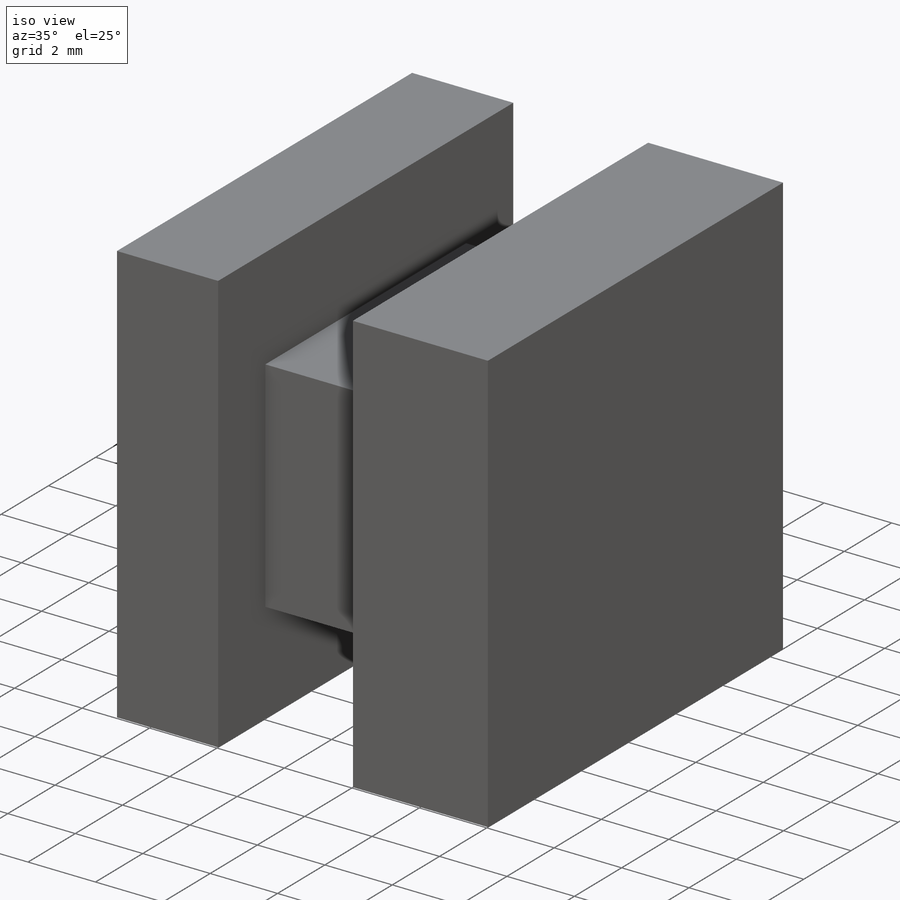
[diagram: iso view]
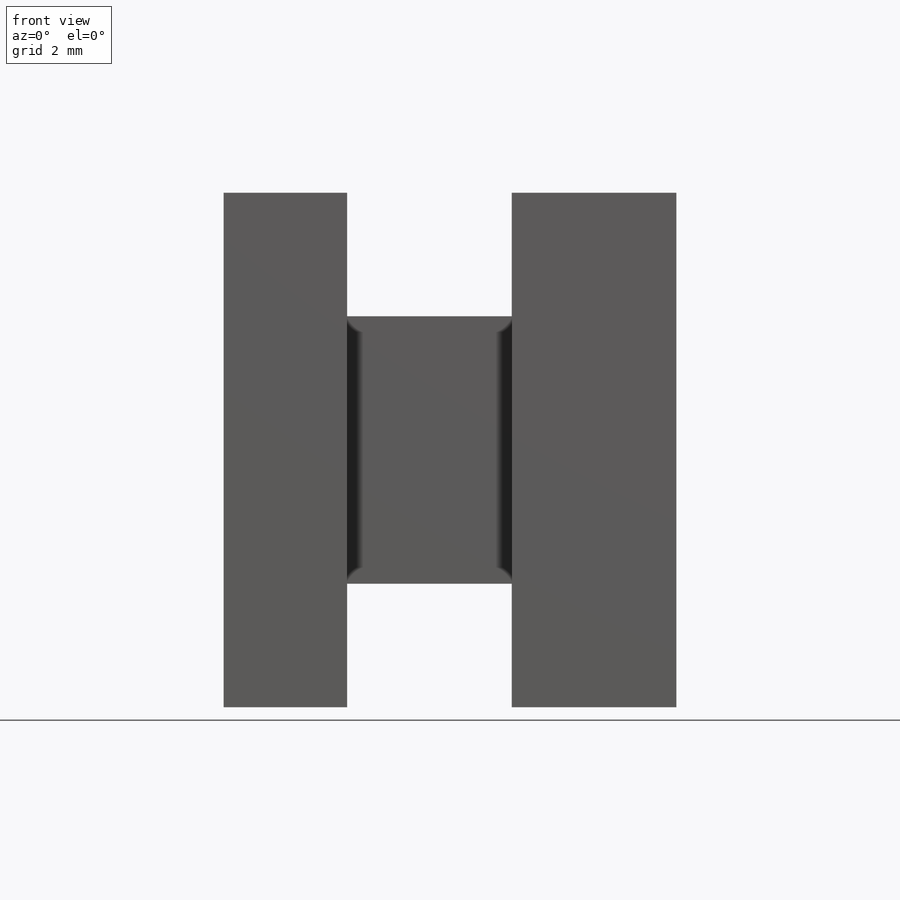
[diagram: front view]
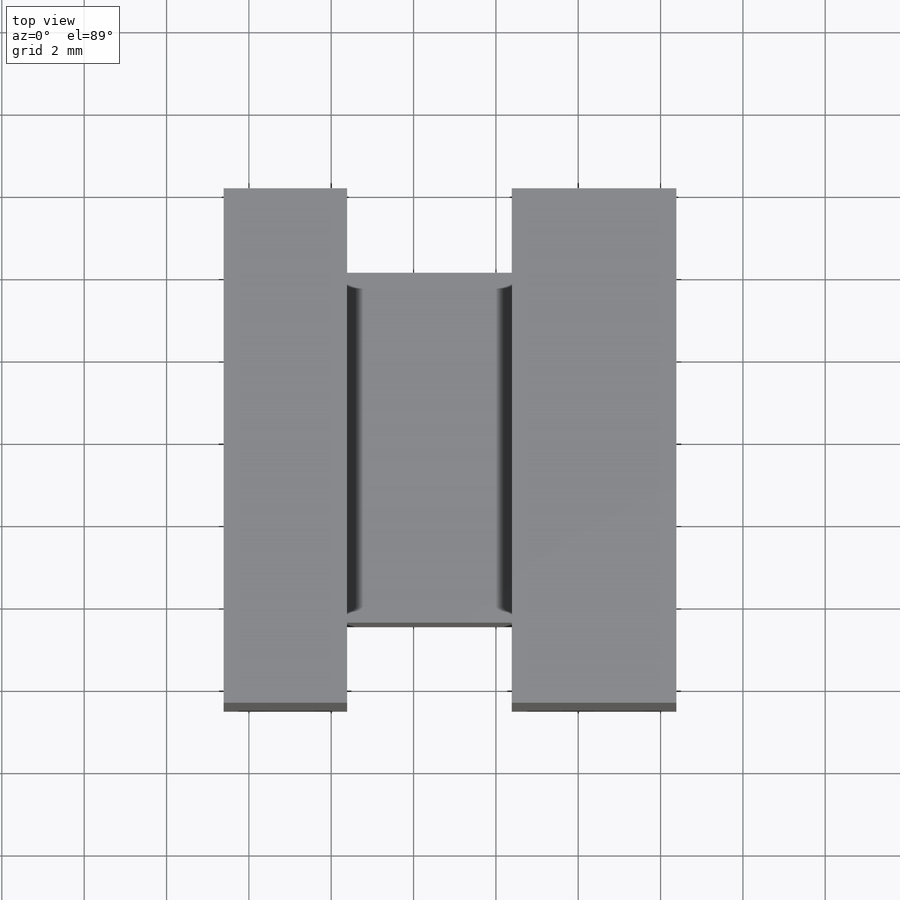
[diagram: top view]
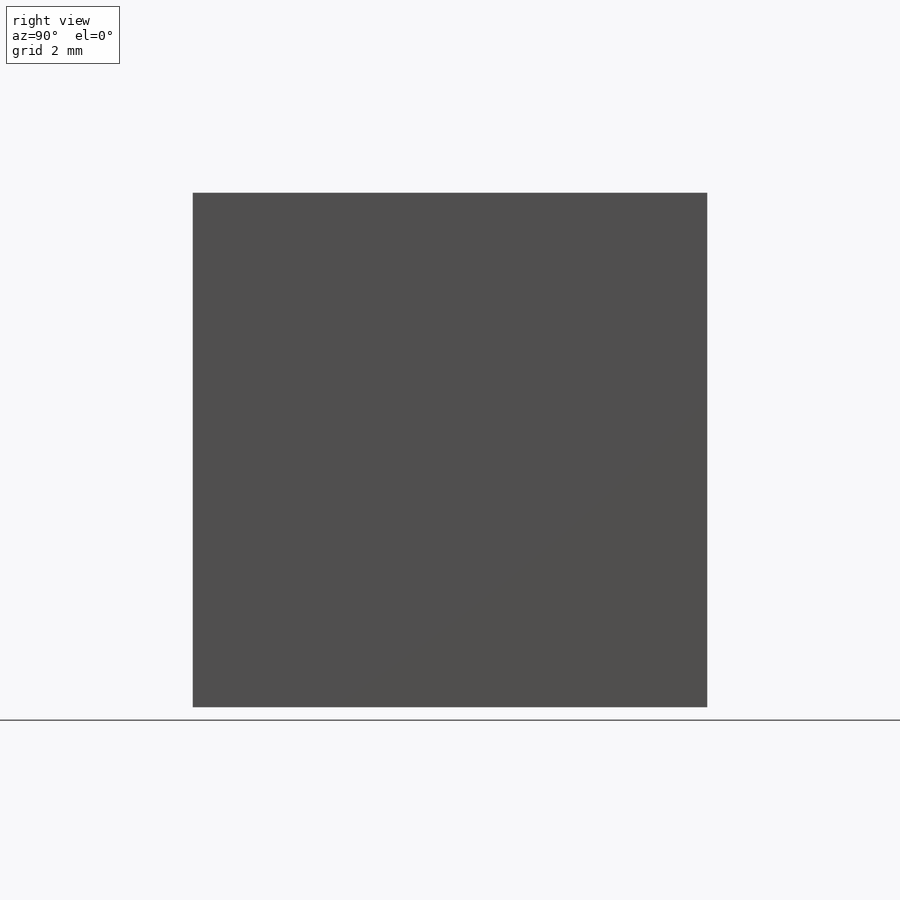
[diagram: right view]
SOLIDWORKS PART (.sldprt)
format: sldprt  version: not decoded by parser v0  size: 205,312 bytes
history: native  units: mm
features: sketch x3, cut_extrude x2, material x1, extrude x1 (+11 scaffold rows collapsed)
feature tree (18):
  scaffold x11  (default folders/planes/origin — collapsed)
  material  "Material <not specified>"
  sketch  "Sketch1"  dims[D1=3.0mm]
  extrude  "Boss-Extrude2"  Depth=12.5mm
  sketch  "Sketch7"  dims[D1=0.0mm]
  cut_extrude  "Cut-Extrude10"  Depth=26mm
  sketch  "Sketch8"  dims[D1=2.0mm]
  cut_extrude  "Cut-Extrude11"  [1 undecoded]
decode coverage: 5 of 6 modeling features carry decoded parameters
note: 1 parameter value undecoded
note: suppression state not decoded; provenance and decode notes live in map.json
